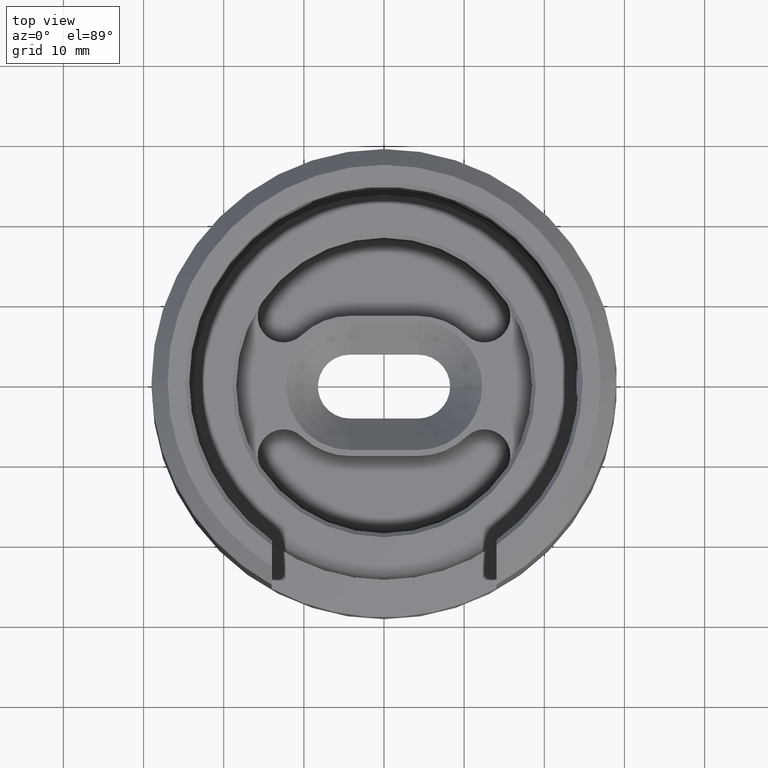
[diagram: clean part render]
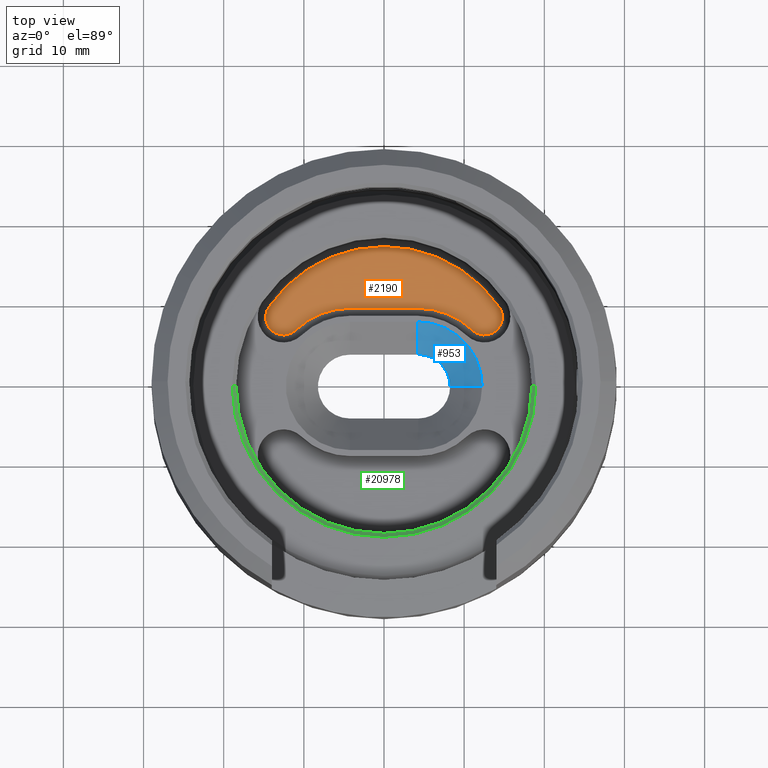
[diagram: same view with three faces highlighted in distinct colors, each labeled with its STEP entity id]
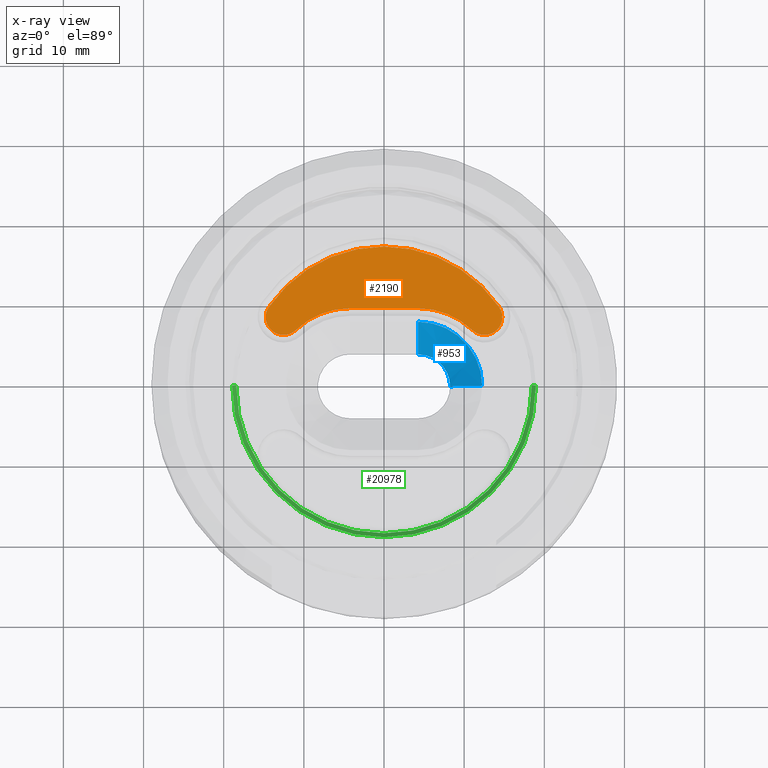
[diagram: x-ray of the same camera — body ghosted, the three highlighted faces saturated]
A machine part, top view with three faces highlighted in distinct colors.
The next image is the same camera in x-ray (body ghosted, the three faces saturated) — at least one of them is partly hidden behind the body in this view.
Their STEP definitions:

[orange] entity #2190 — the highlighted planar face has unit normal (0, 0, 1).
#314 = VERTEX_POINT ( 'NONE', #9401 ) ;
#752 = VERTEX_POINT ( 'NONE', #1501 ) ;
#1121 = CARTESIAN_POINT ( 'NONE',  ( 0.0000000000000000000, 0.0000000000000000000, -2.199999999999996600 ) ) ;
#1501 = CARTESIAN_POINT ( 'NONE',  ( -10.99716062849931400, 7.038346642019636300, -2.199999999999996600 ) ) ;
#2190 = ADVANCED_FACE ( 'NONE', ( #3117 ), #17037, .T. ) ;
#3117 = FACE_OUTER_BOUND ( 'NONE', #18379, .T. ) ;
#3146 = CARTESIAN_POINT ( 'NONE',  ( -12.53573638543418600, 9.749999999999969800, -2.199999999999996600 ) ) ;
#3576 = CARTESIAN_POINT ( 'NONE',  ( 12.53573638543413800, 8.643322439775953800, -2.199999999999996600 ) ) ;
#3635 = ORIENTED_EDGE ( 'NONE', *, *, #9707, .T. ) ;
#3920 = CARTESIAN_POINT ( 'NONE',  ( -12.53573638543418400, 8.643322439775907600, -2.199999999999996600 ) ) ;
#4852 = CARTESIAN_POINT ( 'NONE',  ( 10.99716062849927700, 7.038346642019682500, -2.199999999999996600 ) ) ;
#5692 = EDGE_CURVE ( 'NONE', #20567, #12315, #11535, .T. ) ;
#5960 = CARTESIAN_POINT ( 'NONE',  ( -12.53573638543418400, 8.643322439775907600, -2.199999999999996600 ) ) ;
#6174 = CIRCLE ( 'NONE', #26111, 17.44999999999999600 ) ;
#6645 = VECTOR ( 'NONE', #20955, 1000.000000000000000 ) ;
#7009 = ORIENTED_EDGE ( 'NONE', *, *, #18980, .T. ) ;
#7240 = DIRECTION ( 'NONE',  ( 1.000000000000000000, 8.881784197001252300E-016, 0.0000000000000000000 ) ) ;
#7340 = CARTESIAN_POINT ( 'NONE',  ( 4.250000000000000000, 0.0000000000000000000, -2.199999999999996600 ) ) ;
#7759 = DIRECTION ( 'NONE',  ( 0.0000000000000000000, 0.0000000000000000000, 1.000000000000000000 ) ) ;
#7896 = DIRECTION ( 'NONE',  ( 0.0000000000000000000, 0.0000000000000000000, 1.000000000000000000 ) ) ;
#8654 = AXIS2_PLACEMENT_3D ( 'NONE', #3576, #25963, #17081 ) ;
#9401 = CARTESIAN_POINT ( 'NONE',  ( 4.250000000000000900, 9.750000000000033800, -2.199999999999996600 ) ) ;
#9707 = EDGE_CURVE ( 'NONE', #21598, #314, #12581, .T. ) ;
#10153 = VERTEX_POINT ( 'NONE', #4852 ) ;
#10801 = DIRECTION ( 'NONE',  ( 0.0000000000000000000, 0.0000000000000000000, 1.000000000000000000 ) ) ;
#11140 = CARTESIAN_POINT ( 'NONE',  ( -4.250000000000002700, 9.750000000000001800, -2.199999999999996600 ) ) ;
#11535 = CIRCLE ( 'NONE', #27854, 2.223322439775906400 ) ;
#12201 = ORIENTED_EDGE ( 'NONE', *, *, #21659, .T. ) ;
#12315 = VERTEX_POINT ( 'NONE', #22883 ) ;
#12581 = LINE ( 'NONE', #3146, #6645 ) ;
#12584 = ORIENTED_EDGE ( 'NONE', *, *, #20850, .T. ) ;
#12877 = DIRECTION ( 'NONE',  ( 1.000000000000000000, 0.0000000000000000000, -0.0000000000000000000 ) ) ;
#13958 = CARTESIAN_POINT ( 'NONE',  ( -4.250000000000000000, 0.0000000000000000000, -2.199999999999996600 ) ) ;
#14638 = DIRECTION ( 'NONE',  ( 1.000000000000000000, 0.0000000000000000000, 0.0000000000000000000 ) ) ;
#14963 = CARTESIAN_POINT ( 'NONE',  ( -14.36614120583027100, 9.905376663920755200, -2.199999999999996600 ) ) ;
#15138 = CIRCLE ( 'NONE', #27717, 9.750000000000001800 ) ;
#15519 = AXIS2_PLACEMENT_3D ( 'NONE', #7340, #22813, #7240 ) ;
#16357 = VERTEX_POINT ( 'NONE', #14963 ) ;
#16792 = EDGE_CURVE ( 'NONE', #12315, #16357, #6174, .T. ) ;
#16948 = DIRECTION ( 'NONE',  ( 0.0000000000000000000, 0.0000000000000000000, 1.000000000000000000 ) ) ;
#17037 = PLANE ( 'NONE',  #18673 ) ;
#17081 = DIRECTION ( 'NONE',  ( 1.000000000000000000, 0.0000000000000000000, 0.0000000000000000000 ) ) ;
#18379 = EDGE_LOOP ( 'NONE', ( #12584, #23040, #27568, #7009, #24168, #3635, #12201 ) ) ;
#18435 = DIRECTION ( 'NONE',  ( -0.0000000000000000000, -0.0000000000000000000, -1.000000000000000000 ) ) ;
#18673 = AXIS2_PLACEMENT_3D ( 'NONE', #5960, #16948, #12877 ) ;
#18734 = CIRCLE ( 'NONE', #15519, 9.750000000000026600 ) ;
#18980 = EDGE_CURVE ( 'NONE', #16357, #752, #28096, .T. ) ;
#20395 = DIRECTION ( 'NONE',  ( 1.000000000000000000, -8.881784197001252300E-016, 0.0000000000000000000 ) ) ;
#20567 = VERTEX_POINT ( 'NONE', #25300 ) ;
#20850 = EDGE_CURVE ( 'NONE', #10153, #20567, #25358, .T. ) ;
#20955 = DIRECTION ( 'NONE',  ( 1.000000000000000000, 3.673532066774414800E-015, -0.0000000000000000000 ) ) ;
#21598 = VERTEX_POINT ( 'NONE', #11140 ) ;
#21659 = EDGE_CURVE ( 'NONE', #314, #10153, #18734, .T. ) ;
#22813 = DIRECTION ( 'NONE',  ( -0.0000000000000000000, -0.0000000000000000000, -1.000000000000000000 ) ) ;
#22883 = CARTESIAN_POINT ( 'NONE',  ( 14.36614120583021900, 9.905376663920810300, -2.199999999999996600 ) ) ;
#23040 = ORIENTED_EDGE ( 'NONE', *, *, #5692, .T. ) ;
#23905 = AXIS2_PLACEMENT_3D ( 'NONE', #3920, #10801, #24239 ) ;
#24168 = ORIENTED_EDGE ( 'NONE', *, *, #25715, .T. ) ;
#24239 = DIRECTION ( 'NONE',  ( 1.000000000000000000, 0.0000000000000000000, 0.0000000000000000000 ) ) ;
#25300 = CARTESIAN_POINT ( 'NONE',  ( 14.75905882521004400, 8.643322439775953800, -2.199999999999996600 ) ) ;
#25358 = CIRCLE ( 'NONE', #8654, 2.223322439775906400 ) ;
#25703 = DIRECTION ( 'NONE',  ( 1.000000000000000000, 0.0000000000000000000, 0.0000000000000000000 ) ) ;
#25715 = EDGE_CURVE ( 'NONE', #752, #21598, #15138, .T. ) ;
#25963 = DIRECTION ( 'NONE',  ( 0.0000000000000000000, 0.0000000000000000000, 1.000000000000000000 ) ) ;
#26111 = AXIS2_PLACEMENT_3D ( 'NONE', #1121, #7759, #14638 ) ;
#27568 = ORIENTED_EDGE ( 'NONE', *, *, #16792, .T. ) ;
#27717 = AXIS2_PLACEMENT_3D ( 'NONE', #13958, #18435, #20395 ) ;
#27836 = CARTESIAN_POINT ( 'NONE',  ( 12.53573638543413800, 8.643322439775953800, -2.199999999999996600 ) ) ;
#27854 = AXIS2_PLACEMENT_3D ( 'NONE', #27836, #7896, #25703 ) ;
#28096 = CIRCLE ( 'NONE', #23905, 2.223322439775906400 ) ;

[blue] entity #953 — the highlighted conical surface has half-angle 45 deg.
#912 = DIRECTION ( 'NONE',  ( 1.000000000000000000, 0.0000000000000000000, 0.0000000000000000000 ) ) ;
#953 = ADVANCED_FACE ( 'NONE', ( #20324 ), #27646, .F. ) ;
#1039 = CARTESIAN_POINT ( 'NONE',  ( 4.250000000000000000, 8.000000000000000000, 1.300000000000004300 ) ) ;
#2415 = DIRECTION ( 'NONE',  ( 0.7071067811865474600, 0.0000000000000000000, 0.7071067811865476800 ) ) ;
#2531 = AXIS2_PLACEMENT_3D ( 'NONE', #3172, #7454, #912 ) ;
#3172 = CARTESIAN_POINT ( 'NONE',  ( 4.250000000000000000, 0.0000000000000000000, -2.699999999999997500 ) ) ;
#4049 = DIRECTION ( 'NONE',  ( 1.000000000000000000, 0.0000000000000000000, 0.0000000000000000000 ) ) ;
#4143 = DIRECTION ( 'NONE',  ( -0.0000000000000000000, -0.0000000000000000000, 1.000000000000000000 ) ) ;
#4614 = ORIENTED_EDGE ( 'NONE', *, *, #12206, .T. ) ;
#6802 = VECTOR ( 'NONE', #25026, 999.9999999999998900 ) ;
#7138 = CARTESIAN_POINT ( 'NONE',  ( 4.250000000000000000, 0.0000000000000000000, -6.699999999999999300 ) ) ;
#7454 = DIRECTION ( 'NONE',  ( -0.0000000000000000000, -0.0000000000000000000, 1.000000000000000000 ) ) ;
#7942 = VERTEX_POINT ( 'NONE', #18210 ) ;
#9166 = VERTEX_POINT ( 'NONE', #11342 ) ;
#11342 = CARTESIAN_POINT ( 'NONE',  ( 8.250000000000000000, 0.0000000000000000000, -2.699999999999997500 ) ) ;
#12206 = EDGE_CURVE ( 'NONE', #7942, #12482, #24329, .T. ) ;
#12482 = VERTEX_POINT ( 'NONE', #1039 ) ;
#13361 = ORIENTED_EDGE ( 'NONE', *, *, #14723, .T. ) ;
#14723 = EDGE_CURVE ( 'NONE', #9166, #7942, #24198, .T. ) ;
#14992 = VERTEX_POINT ( 'NONE', #24882 ) ;
#16063 = AXIS2_PLACEMENT_3D ( 'NONE', #23078, #27557, #25322 ) ;
#17955 = CIRCLE ( 'NONE', #2531, 4.000000000000000000 ) ;
#18210 = CARTESIAN_POINT ( 'NONE',  ( 12.25000000000000000, 0.0000000000000000000, 1.300000000000004300 ) ) ;
#18501 = ORIENTED_EDGE ( 'NONE', *, *, #19884, .F. ) ;
#18631 = EDGE_LOOP ( 'NONE', ( #26668, #13361, #4614, #18501 ) ) ;
#19541 = CARTESIAN_POINT ( 'NONE',  ( 12.25000000000000000, 0.0000000000000000000, 1.300000000000004300 ) ) ;
#19884 = EDGE_CURVE ( 'NONE', #14992, #12482, #24889, .T. ) ;
#20324 = FACE_OUTER_BOUND ( 'NONE', #18631, .T. ) ;
#20509 = AXIS2_PLACEMENT_3D ( 'NONE', #28470, #4143, #4049 ) ;
#23078 = CARTESIAN_POINT ( 'NONE',  ( 4.250000000000000000, 0.0000000000000000000, 1.300000000000004300 ) ) ;
#24198 = LINE ( 'NONE', #19541, #25569 ) ;
#24329 = CIRCLE ( 'NONE', #16063, 8.000000000000000000 ) ;
#24509 = EDGE_CURVE ( 'NONE', #9166, #14992, #17955, .T. ) ;
#24882 = CARTESIAN_POINT ( 'NONE',  ( 4.250000000000000000, 4.000000000000000000, -2.699999999999997500 ) ) ;
#24889 = LINE ( 'NONE', #7138, #6802 ) ;
#25026 = DIRECTION ( 'NONE',  ( 0.0000000000000000000, 0.7071067811865473500, 0.7071067811865477900 ) ) ;
#25322 = DIRECTION ( 'NONE',  ( 1.000000000000000000, 0.0000000000000000000, 0.0000000000000000000 ) ) ;
#25569 = VECTOR ( 'NONE', #2415, 1000.000000000000000 ) ;
#26668 = ORIENTED_EDGE ( 'NONE', *, *, #24509, .F. ) ;
#27557 = DIRECTION ( 'NONE',  ( -0.0000000000000000000, -0.0000000000000000000, 1.000000000000000000 ) ) ;
#27646 = CONICAL_SURFACE ( 'NONE', #20509, 8.000000000000000000, 0.7853981633974481700 ) ;
#28470 = CARTESIAN_POINT ( 'NONE',  ( 4.250000000000000000, 0.0000000000000000000, 1.300000000000004300 ) ) ;

[green] entity #20978 — the highlighted conical surface has half-angle 45 deg.
#210 = EDGE_CURVE ( 'NONE', #15080, #26885, #23489, .T. ) ;
#626 = CONICAL_SURFACE ( 'NONE', #21107, 18.44999999999999900, 0.7853981633974482800 ) ;
#1001 = CARTESIAN_POINT ( 'NONE',  ( -18.95000000000001700, 2.320705684384235900E-015, 5.000000000000003600 ) ) ;
#2871 = AXIS2_PLACEMENT_3D ( 'NONE', #21543, #27988, #14827 ) ;
#4175 = FACE_OUTER_BOUND ( 'NONE', #23788, .T. ) ;
#5155 = CIRCLE ( 'NONE', #2871, 18.44999999999999900 ) ;
#5281 = CARTESIAN_POINT ( 'NONE',  ( 18.95000000000001700, 0.0000000000000000000, 5.000000000000003600 ) ) ;
#5321 = EDGE_CURVE ( 'NONE', #28683, #15983, #26249, .T. ) ;
#7263 = CARTESIAN_POINT ( 'NONE',  ( -18.44999999999999900, 2.259473344426866300E-015, 4.499999999999985800 ) ) ;
#8496 = VECTOR ( 'NONE', #21817, 1000.000000000000100 ) ;
#8959 = DIRECTION ( 'NONE',  ( -0.7071067811865474600, 8.659560562354932900E-017, 0.7071067811865474600 ) ) ;
#10625 = CARTESIAN_POINT ( 'NONE',  ( 0.0000000000000000000, 0.0000000000000000000, 5.000000000000003600 ) ) ;
#10674 = DIRECTION ( 'NONE',  ( 0.0000000000000000000, 0.0000000000000000000, 1.000000000000000000 ) ) ;
#12739 = CARTESIAN_POINT ( 'NONE',  ( 0.0000000000000000000, 0.0000000000000000000, 4.499999999999985800 ) ) ;
#12772 = CARTESIAN_POINT ( 'NONE',  ( 18.44999999999999900, 0.0000000000000000000, 4.499999999999985800 ) ) ;
#14674 = AXIS2_PLACEMENT_3D ( 'NONE', #10625, #26204, #22089 ) ;
#14827 = DIRECTION ( 'NONE',  ( -1.000000000000000000, 0.0000000000000000000, 0.0000000000000000000 ) ) ;
#15080 = VERTEX_POINT ( 'NONE', #7263 ) ;
#15983 = VERTEX_POINT ( 'NONE', #5281 ) ;
#19861 = CARTESIAN_POINT ( 'NONE',  ( 18.44999999999999900, 0.0000000000000000000, 4.499999999999985800 ) ) ;
#20775 = ORIENTED_EDGE ( 'NONE', *, *, #5321, .F. ) ;
#20978 = ADVANCED_FACE ( 'NONE', ( #4175 ), #626, .F. ) ;
#21022 = CIRCLE ( 'NONE', #14674, 18.95000000000001700 ) ;
#21107 = AXIS2_PLACEMENT_3D ( 'NONE', #12739, #10674, #28297 ) ;
#21543 = CARTESIAN_POINT ( 'NONE',  ( 0.0000000000000000000, 0.0000000000000000000, 4.499999999999985800 ) ) ;
#21817 = DIRECTION ( 'NONE',  ( 0.7071067811865474600, 0.0000000000000000000, 0.7071067811865474600 ) ) ;
#21848 = EDGE_CURVE ( 'NONE', #15080, #28683, #5155, .T. ) ;
#22089 = DIRECTION ( 'NONE',  ( -1.000000000000000000, 0.0000000000000000000, 0.0000000000000000000 ) ) ;
#23489 = LINE ( 'NONE', #24796, #25584 ) ;
#23788 = EDGE_LOOP ( 'NONE', ( #25479, #26096, #25225, #20775 ) ) ;
#24796 = CARTESIAN_POINT ( 'NONE',  ( -18.44999999999999900, 2.259473344426866300E-015, 4.499999999999985800 ) ) ;
#25225 = ORIENTED_EDGE ( 'NONE', *, *, #27030, .F. ) ;
#25479 = ORIENTED_EDGE ( 'NONE', *, *, #21848, .F. ) ;
#25584 = VECTOR ( 'NONE', #8959, 1000.000000000000100 ) ;
#26096 = ORIENTED_EDGE ( 'NONE', *, *, #210, .T. ) ;
#26204 = DIRECTION ( 'NONE',  ( 0.0000000000000000000, 0.0000000000000000000, -1.000000000000000000 ) ) ;
#26249 = LINE ( 'NONE', #19861, #8496 ) ;
#26885 = VERTEX_POINT ( 'NONE', #1001 ) ;
#27030 = EDGE_CURVE ( 'NONE', #15983, #26885, #21022, .T. ) ;
#27988 = DIRECTION ( 'NONE',  ( 0.0000000000000000000, 0.0000000000000000000, 1.000000000000000000 ) ) ;
#28297 = DIRECTION ( 'NONE',  ( 1.000000000000000000, 0.0000000000000000000, 0.0000000000000000000 ) ) ;
#28683 = VERTEX_POINT ( 'NONE', #12772 ) ;